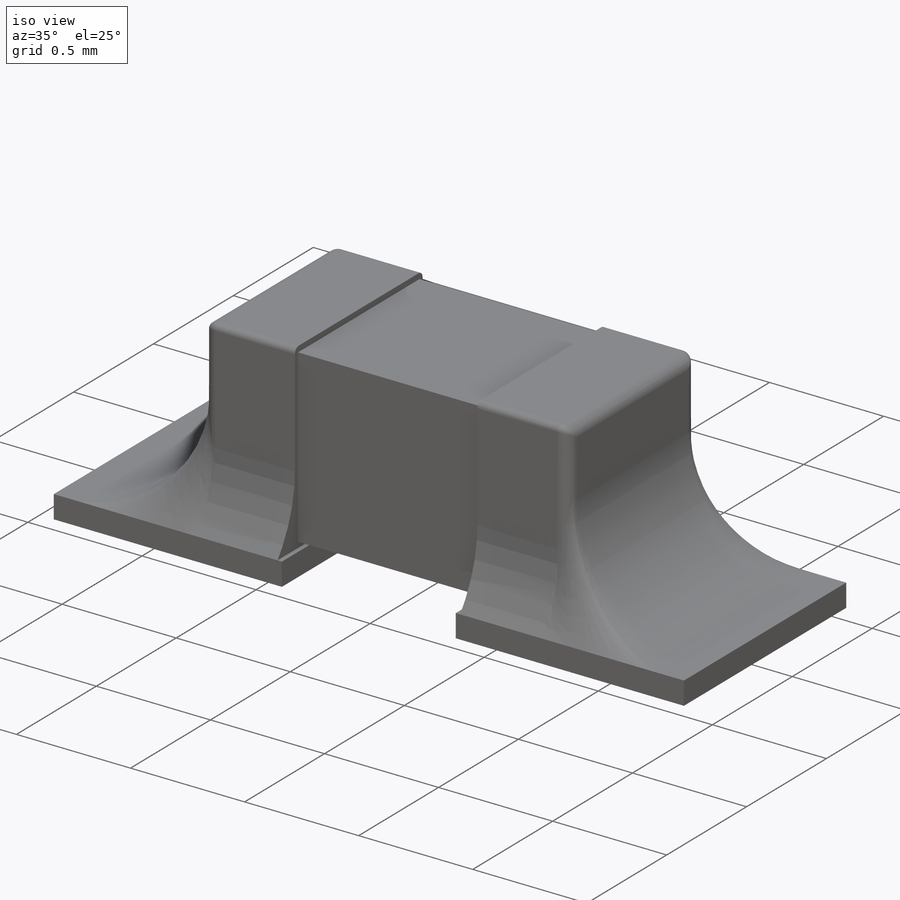
[diagram: iso view]
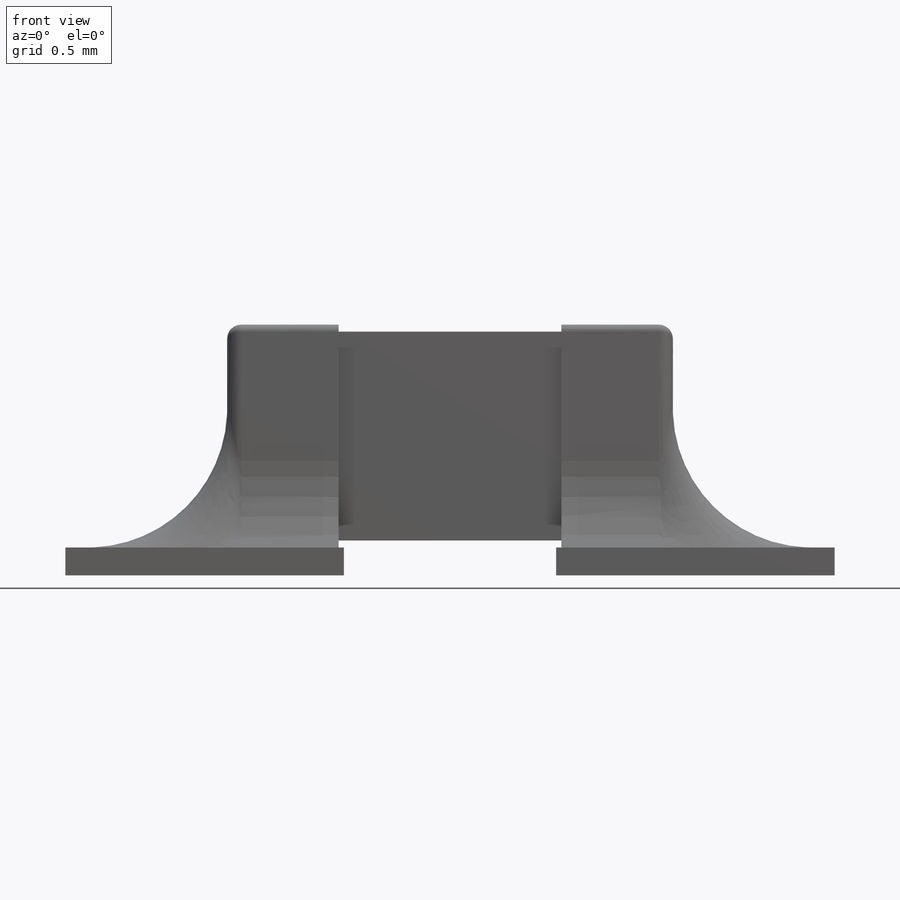
[diagram: front view]
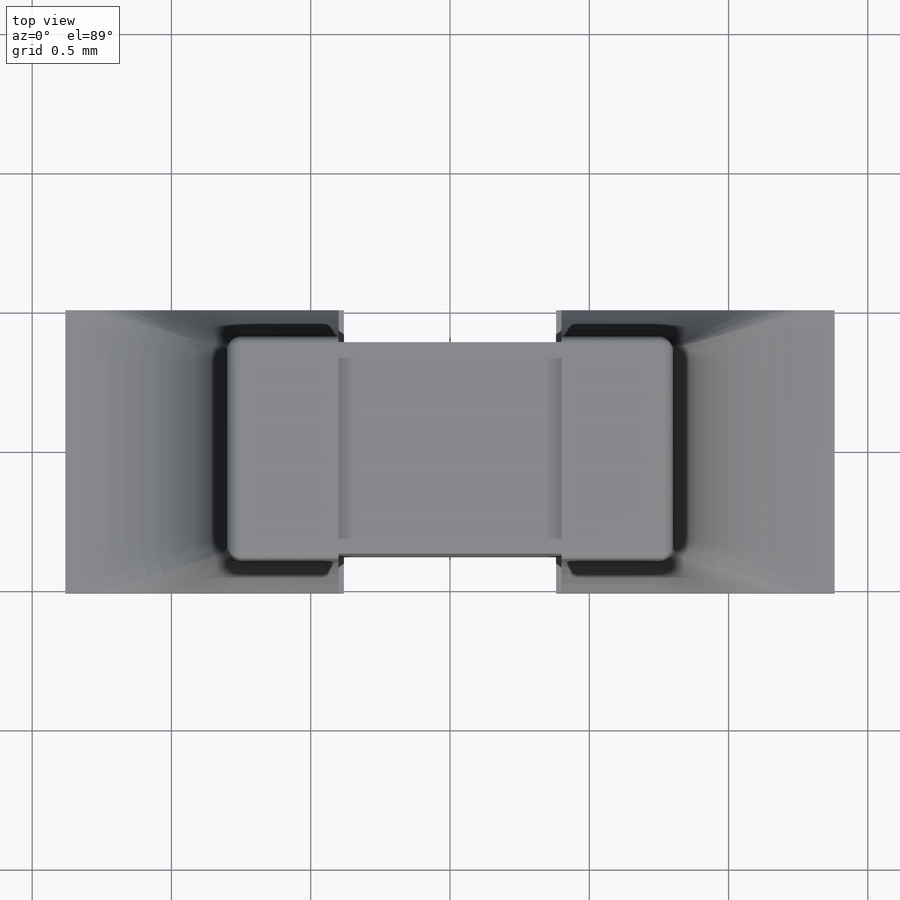
[diagram: top view]
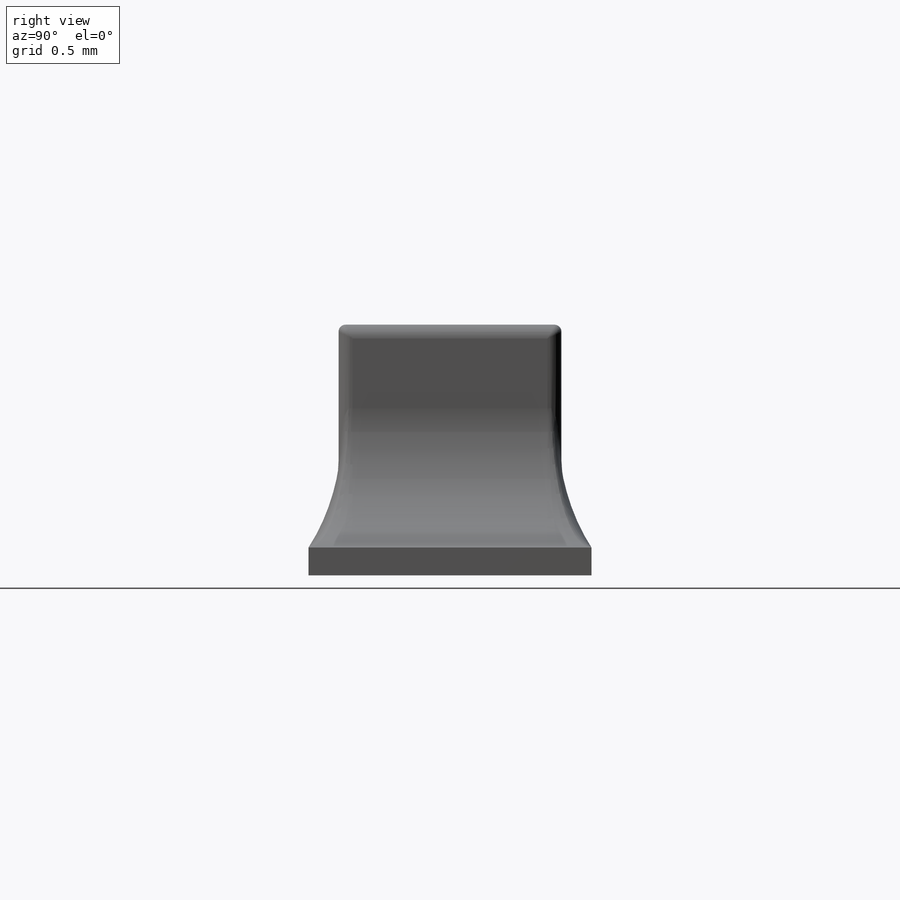
[diagram: right view]
SOLIDWORKS PART (.sldprt)
format: sldprt  version: not decoded by parser v0  size: 362,496 bytes
history: native  units: mm
features: sketch x4, extrude x4, fillet x2, material x1 (+11 scaffold rows collapsed)
feature tree (22):
  scaffold x11  (default folders/planes/origin — collapsed)
  material  "6063-O"
  sketch  "Sketch1"  dims[D1=0.76mm D2=0.75mm D3=0.125mm D4=0.38mm]
  extrude  "Boss-Extrude1"  Depth=0.8mm
  sketch  "Sketch3"  dims[D5=0.025mm D1=0.8mm D2=0.4mm D3=0.8mm D4=0.1mm]
  extrude  "Boss-Extrude2"  Depth=0.4mm
  sketch  "Sketch5"  dims[D1=0.025mm]
  extrude  "Boss-Extrude3"  Depth=0.4mm
  sketch  "Sketch6"  dims[D1=1.0mm D2=1.016mm D3=0.381mm D4=0.508mm D5=0.381mm]
  extrude  "Boss-Extrude4"  Depth=0.1mm
  fillet  "Fillet3"  Radius=0.05mm
  fillet  "Fillet5"  Radius=0.5mm
decode coverage: 10 of 10 modeling features carry decoded parameters
note: suppression state not decoded; provenance and decode notes live in map.json
